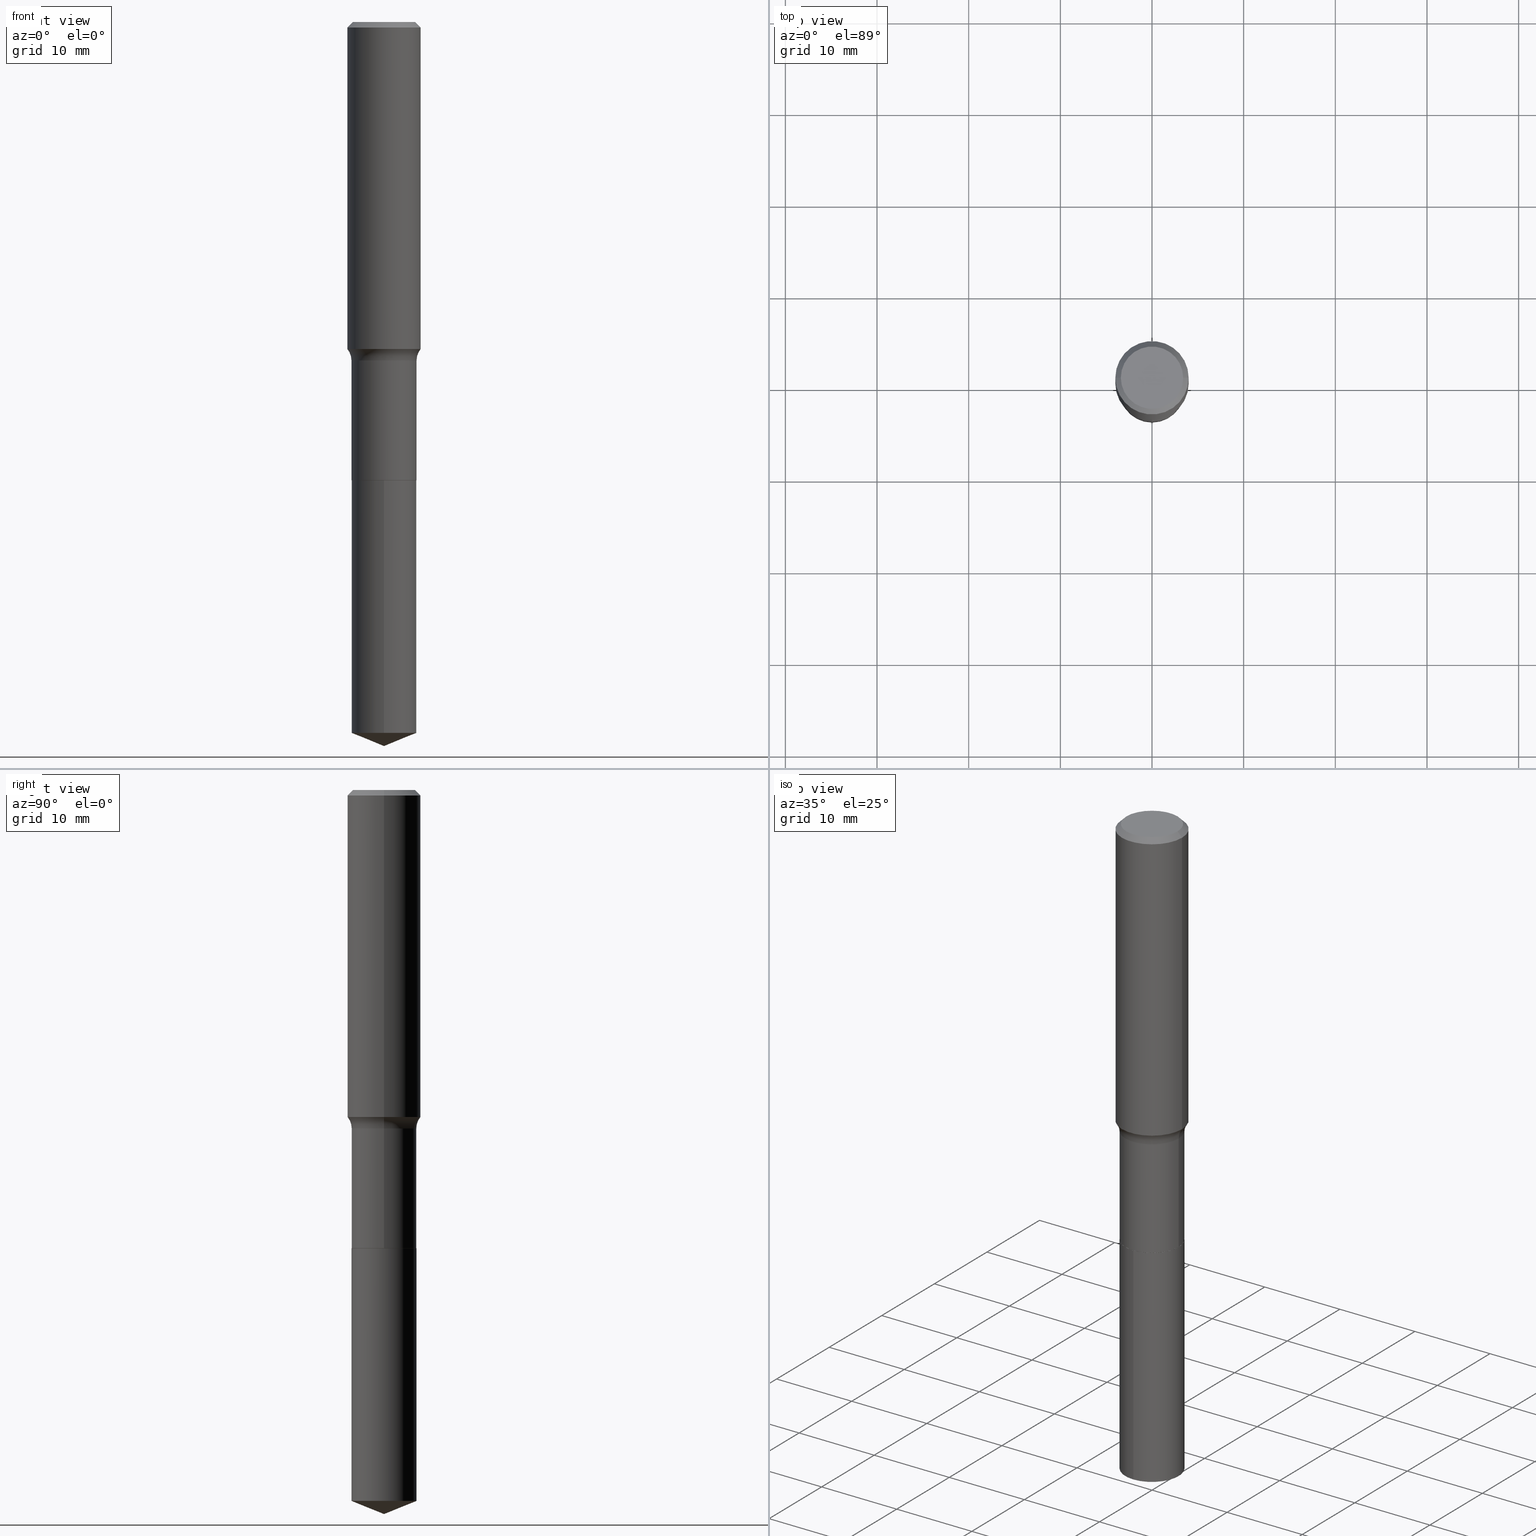
[diagram: canonical four-view strip — front | top / right | iso, engineering-drawing reading convention]
A machine part, canonical four-view strip (front | top / right | iso — engineering-drawing reading convention). The complete STEP part file that produces these views, byte-faithful:
ISO-10303-21;
HEADER;
FILE_DESCRIPTION (( 'STEP AP203' ),
    '1' );
FILE_NAME ('69161.STEP',
    '2024-04-19T17:18:12',
    ( '' ),
    ( '' ),
    'SwSTEP 2.0',
    'SolidWorks 2023',
    '' );
FILE_SCHEMA (( 'CONFIG_CONTROL_DESIGN' ));
ENDSEC;

DATA;
#1 = CC_DESIGN_PERSON_AND_ORGANIZATION_ASSIGNMENT ( #248, #252, ( #238 ) ) ;
#2 = CONICAL_SURFACE ( 'NONE', #143, 97.44436430772759650, 1.186823891356141969 ) ;
#3 = DIRECTION ( 'NONE',  ( -2.445468806185136597E-29, 3.491481338843145583E-15, 1.000000000000000000 ) ) ;
#4 = EDGE_CURVE ( 'NONE', #332, #388, #212, .T. ) ;
#5 = CARTESIAN_POINT ( 'NONE',  ( 0.1397499999999999576, -9.758690342066554020E-16, 6.814457044174817776E-30 ) ) ;
#6 = EDGE_LOOP ( 'NONE', ( #142, #45, #279, #154 ) ) ;
#7 = CARTESIAN_POINT ( 'NONE',  ( 0.000000000000000000, 0.000000000000000000, 0.000000000000000000 ) ) ;
#8 = DIRECTION ( 'NONE',  ( -2.445468806185136597E-29, 3.491481338843145583E-15, 1.000000000000000000 ) ) ;
#9 = TOROIDAL_SURFACE ( 'NONE', #372, 0.2177499999999998881, 0.07799999999999999989 ) ;
#10 = PERSON_AND_ORGANIZATION ( #145, #18 ) ;
#11 = DIRECTION ( 'NONE',  ( -6.982962677686265133E-15, -1.000000000000000000, 3.909621457837943227E-15 ) ) ;
#12 = CARTESIAN_POINT ( 'NONE',  ( 4.813905344975441835E-29, -6.872981015512731707E-15, -1.968500000000000139 ) ) ;
#13 = PERSON_AND_ORGANIZATION_ROLE ( 'creator' ) ;
#14 = EDGE_LOOP ( 'NONE', ( #288, #355, #254, #174 ) ) ;
#15 = CARTESIAN_POINT ( 'NONE',  ( 0.1392500000000000127, -7.845358568380544694E-15, -1.968500000000000139 ) ) ;
#16 = AXIS2_PLACEMENT_3D ( 'NONE', #386, #336, #187 ) ;
#17 = AXIS2_PLACEMENT_3D ( 'NONE', #278, #273, #94 ) ;
#18 = ORGANIZATION ( 'UNSPECIFIED', 'UNSPECIFIED', '' ) ;
#19 = DIRECTION ( 'NONE',  ( 0.7071067811866078578, -2.468850131082888544E-15, 0.7071067811864871766 ) ) ;
#20 = ORIENTED_EDGE ( 'NONE', *, *, #78, .T. ) ;
#21 = CARTESIAN_POINT ( 'NONE',  ( 3.555956191073807244E-29, -5.076963014811818627E-15, -1.454100000000000170 ) ) ;
#22 = ADVANCED_FACE ( 'NONE', ( #485 ), #2, .T. ) ;
#23 = CIRCLE ( 'NONE', #483, 0.1397500000000000131 ) ;
#24 = LOCAL_TIME ( 13, 18, 12.00000000000000000, #89 ) ;
#25 = CARTESIAN_POINT ( 'NONE',  ( 4.812682610572349594E-29, -6.871235274843310993E-15, -1.968000000000000194 ) ) ;
#26 = PERSON_AND_ORGANIZATION_ROLE ( 'creator' ) ;
#27 = FACE_OUTER_BOUND ( 'NONE', #84, .T. ) ;
#28 = CC_DESIGN_DATE_AND_TIME_ASSIGNMENT ( #362, #398, ( #238 ) ) ;
#29 = AXIS2_PLACEMENT_3D ( 'NONE', #168, #322, #470 ) ;
#30 = CYLINDRICAL_SURFACE ( 'NONE', #466, 0.1575000000000000844 ) ;
#31 =( NAMED_UNIT ( * ) PLANE_ANGLE_UNIT ( ) SI_UNIT ( $, .RADIAN. ) );
#32 = PERSON_AND_ORGANIZATION_ROLE ( 'design_owner' ) ;
#33 = ORIENTED_EDGE ( 'NONE', *, *, #173, .F. ) ;
#34 = ORIENTED_EDGE ( 'NONE', *, *, #295, .T. ) ;
#35 = FACE_OUTER_BOUND ( 'NONE', #191, .T. ) ;
#36 =( NAMED_UNIT ( * ) SI_UNIT ( $, .STERADIAN. ) SOLID_ANGLE_UNIT ( ) );
#37 = APPLICATION_PROTOCOL_DEFINITION ( 'international standard', 'config_control_design', 1994, #117 ) ;
#38 = VERTEX_POINT ( 'NONE', #310 ) ;
#39 = ORIENTED_EDGE ( 'NONE', *, *, #409, .F. ) ;
#40 = CARTESIAN_POINT ( 'NONE',  ( 0.000000000000000000, 0.000000000000000000, 0.000000000000000000 ) ) ;
#41 = ADVANCED_FACE ( 'NONE', ( #412 ), #107, .F. ) ;
#42 = CIRCLE ( 'NONE', #328, 0.1338749999999999940 ) ;
#43 = VECTOR ( 'NONE', #19, 39.37007874015748143 ) ;
#44 = DIRECTION ( 'NONE',  ( -2.445468806185136597E-29, 3.491481338843145583E-15, 1.000000000000000000 ) ) ;
#45 = ORIENTED_EDGE ( 'NONE', *, *, #147, .T. ) ;
#46 = DIRECTION ( 'NONE',  ( -2.445468806185136597E-29, 3.491481338843145583E-15, 1.000000000000000000 ) ) ;
#47 = DIRECTION ( 'NONE',  ( -6.982962677686265133E-15, -1.000000000000000000, 3.909621457837943227E-15 ) ) ;
#48 = FACE_OUTER_BOUND ( 'NONE', #68, .T. ) ;
#49 = CARTESIAN_POINT ( 'NONE',  ( -0.1397499999999999298, -4.981115671602824904E-15, -1.454100000000000170 ) ) ;
#50 = VERTEX_POINT ( 'NONE', #300 ) ;
#51 = CARTESIAN_POINT ( 'NONE',  ( 0.000000000000000000, 0.000000000000000000, 0.000000000000000000 ) ) ;
#52 = AXIS2_PLACEMENT_3D ( 'NONE', #306, #110, #153 ) ;
#53 = CARTESIAN_POINT ( 'NONE',  ( 0.1575000000000001954, -6.003821310304095983E-15, -1.404562766528599793 ) ) ;
#54 = ORIENTED_EDGE ( 'NONE', *, *, #76, .F. ) ;
#55 = CALENDAR_DATE ( 2024, 19, 4 ) ;
#56 = PERSON_AND_ORGANIZATION ( #145, #18 ) ;
#57 = ADVANCED_FACE ( 'NONE', ( #109 ), #30, .T. ) ;
#58 = ORIENTED_EDGE ( 'NONE', *, *, #484, .F. ) ;
#59 = CIRCLE ( 'NONE', #340, 0.1397500000000000131 ) ;
#60 = VECTOR ( 'NONE', #79, 39.37007874015748143 ) ;
#61 = CARTESIAN_POINT ( 'NONE',  ( -0.1575000000000001954, -3.784899879746348533E-15, -1.404562766528599793 ) ) ;
#62 = ORIENTED_EDGE ( 'NONE', *, *, #137, .T. ) ;
#63 = DIRECTION ( 'NONE',  ( 0.7071067811865451302, -7.319954787623248157E-15, -0.7071067811865499042 ) ) ;
#64 = AXIS2_PLACEMENT_3D ( 'NONE', #215, #348, #224 ) ;
#65 = CARTESIAN_POINT ( 'NONE',  ( -9.758690342065812491E-16, -0.1397500000000106990, -3.053737334939536030 ) ) ;
#66 = EDGE_CURVE ( 'NONE', #346, #50, #155, .T. ) ;
#67 = DIRECTION ( 'NONE',  ( -2.445468806185136597E-29, 3.491481338843145583E-15, 1.000000000000000000 ) ) ;
#68 = EDGE_LOOP ( 'NONE', ( #75, #481, #444, #267 ) ) ;
#69 = CARTESIAN_POINT ( 'NONE',  ( 0.1575000000000000011, -1.163014681279185964E-15, -0.02362500000000014588 ) ) ;
#70 = CIRCLE ( 'NONE', #64, 0.1397500000000000131 ) ;
#71 = APPROVAL_PERSON_ORGANIZATION ( #294, #445, #476 ) ;
#72 = EDGE_CURVE ( 'NONE', #442, #449, #185, .T. ) ;
#73 = DIRECTION ( 'NONE',  ( 1.000000000000000000, -6.982962677686267499E-15, 4.876176775795936353E-29 ) ) ;
#74 = DIRECTION ( 'NONE',  ( -2.445468806185136597E-29, 3.491481338843145583E-15, 1.000000000000000000 ) ) ;
#75 = ORIENTED_EDGE ( 'NONE', *, *, #66, .F. ) ;
#76 = EDGE_CURVE ( 'NONE', #127, #178, #487, .T. ) ;
#77 = LINE ( 'NONE', #277, #124 ) ;
#78 = EDGE_CURVE ( 'NONE', #442, #307, #59, .T. ) ;
#79 = DIRECTION ( 'NONE',  ( -0.7071067811865451302, 2.468850131082231817E-15, -0.7071067811865499042 ) ) ;
#80 = ORIENTED_EDGE ( 'NONE', *, *, #173, .T. ) ;
#81 = LOCAL_TIME ( 13, 18, 12.00000000000000000, #128 ) ;
#82 = DIRECTION ( 'NONE',  ( 1.000000000000000000, -6.982962677686265133E-15, 0.000000000000000000 ) ) ;
#83 = ORIENTED_EDGE ( 'NONE', *, *, #393, .T. ) ;
#84 = EDGE_LOOP ( 'NONE', ( #184, #232, #33 ) ) ;
#85 = FACE_OUTER_BOUND ( 'NONE', #304, .T. ) ;
#86 = EDGE_CURVE ( 'NONE', #449, #38, #290, .T. ) ;
#87 = CARTESIAN_POINT ( 'NONE',  ( 7.605971089883326540E-29, -1.085910352313462661E-14, -3.110199999999999854 ) ) ;
#88 = ORIENTED_EDGE ( 'NONE', *, *, #196, .T. ) ;
#89 = COORDINATED_UNIVERSAL_TIME_OFFSET ( 5, 0, .BEHIND. ) ;
#90 = DIRECTION ( 'NONE',  ( 1.000000000000000000, -6.982962677686266711E-15, 4.876170806578254279E-29 ) ) ;
#91 = CARTESIAN_POINT ( 'NONE',  ( 9.929834732247880261E-16, 0.1397499999999931297, -1.968500000000000583 ) ) ;
#92 = APPROVAL_DATE_TIME ( #401, #445 ) ;
#93 = AXIS2_PLACEMENT_3D ( 'NONE', #432, #358, #389 ) ;
#94 = DIRECTION ( 'NONE',  ( -6.982962677686265133E-15, -1.000000000000000000, 3.909621457837943227E-15 ) ) ;
#95 = ADVANCED_FACE ( 'NONE', ( #259 ), #301, .T. ) ;
#96 = APPLICATION_PROTOCOL_DEFINITION ( 'international standard', 'config_control_design', 1994, #345 ) ;
#97 = LINE ( 'NONE', #15, #43 ) ;
#98 = EDGE_LOOP ( 'NONE', ( #226, #83, #424, #58 ) ) ;
#99 = CARTESIAN_POINT ( 'NONE',  ( 0.1338749999999999940, -1.040731925365424925E-15, 4.101342130351390035E-18 ) ) ;
#100 = APPROVAL_STATUS ( 'not_yet_approved' ) ;
#101 = CARTESIAN_POINT ( 'NONE',  ( 0.1392500000000000127, -7.845358568380544694E-15, -1.968500000000000139 ) ) ;
#102 = DIRECTION ( 'NONE',  ( -2.438088387897960049E-29, 3.491481338843145188E-15, 1.000000000000000000 ) ) ;
#103 = CARTESIAN_POINT ( 'NONE',  ( 3.555956191073807244E-29, -5.076963014811818627E-15, -1.454100000000000170 ) ) ;
#104 = VECTOR ( 'NONE', #227, 39.37007874015748143 ) ;
#105 = AXIS2_PLACEMENT_3D ( 'NONE', #423, #74, #156 ) ;
#106 = CC_DESIGN_APPROVAL ( #381, ( #222 ) ) ;
#107 = PLANE ( 'NONE',  #204 ) ;
#108 = EDGE_CURVE ( 'NONE', #352, #375, #402, .T. ) ;
#109 = FACE_OUTER_BOUND ( 'NONE', #14, .T. ) ;
#110 = DIRECTION ( 'NONE',  ( 2.438088387897960049E-29, -3.491481338843145188E-15, -1.000000000000000000 ) ) ;
#111 = VERTEX_POINT ( 'NONE', #459 ) ;
#112 = DIRECTION ( 'NONE',  ( 1.000000000000000000, -6.982962677686266711E-15, 4.876170806578254279E-29 ) ) ;
#113 = DIRECTION ( 'NONE',  ( 2.445468806185136597E-29, -3.491481338843145583E-15, -1.000000000000000000 ) ) ;
#114 = AXIS2_PLACEMENT_3D ( 'NONE', #152, #414, #456 ) ;
#115 = VECTOR ( 'NONE', #240, 39.37007874015748143 ) ;
#116 = FACE_OUTER_BOUND ( 'NONE', #458, .T. ) ;
#117 = APPLICATION_CONTEXT ( 'configuration controlled 3d designs of mechanical parts and assemblies' ) ;
#118 = CARTESIAN_POINT ( 'NONE',  ( 4.812682610572349594E-29, -6.871235274843310993E-15, -1.968000000000000194 ) ) ;
#119 = EDGE_LOOP ( 'NONE', ( #139, #247, #183, #208 ) ) ;
#120 = CARTESIAN_POINT ( 'NONE',  ( 7.605629838069280594E-29, -1.085958796715298580E-14, -3.110199999999999854 ) ) ;
#121 = DIRECTION ( 'NONE',  ( 1.000000000000000000, -6.982962677686267499E-15, 4.883557194083113462E-29 ) ) ;
#122 = ORIENTED_EDGE ( 'NONE', *, *, #137, .F. ) ;
#123 = DIRECTION ( 'NONE',  ( -6.474490251793170740E-15, -0.9271838545667852038, 0.3746065934159171773 ) ) ;
#124 = VECTOR ( 'NONE', #129, 39.37007874015748143 ) ;
#125 = LOCAL_TIME ( 13, 18, 12.00000000000000000, #175 ) ;
#126 = DIRECTION ( 'NONE',  ( -2.445468806185136877E-29, 3.491481338843145188E-15, 1.000000000000000000 ) ) ;
#127 = VERTEX_POINT ( 'NONE', #65 ) ;
#128 = COORDINATED_UNIVERSAL_TIME_OFFSET ( 5, 0, .BEHIND. ) ;
#129 = DIRECTION ( 'NONE',  ( -0.7071067811866078578, 7.493145998870571886E-15, 0.7071067811864871766 ) ) ;
#130 = CARTESIAN_POINT ( 'NONE',  ( 9.929834732248148474E-16, 0.1397499999999893827, -3.053737334939536918 ) ) ;
#131 = ORIENTED_EDGE ( 'NONE', *, *, #446, .T. ) ;
#132 = PERSON_AND_ORGANIZATION ( #145, #18 ) ;
#133 = DIRECTION ( 'NONE',  ( 1.000000000000000000, -6.982962677686265922E-15, 0.000000000000000000 ) ) ;
#134 = ORIENTED_EDGE ( 'NONE', *, *, #379, .F. ) ;
#135 = SHAPE_DEFINITION_REPRESENTATION ( #415, #284 ) ;
#136 = AXIS2_PLACEMENT_3D ( 'NONE', #417, #67, #308 ) ;
#137 = EDGE_CURVE ( 'NONE', #346, #293, #42, .T. ) ;
#138 = AXIS2_PLACEMENT_3D ( 'NONE', #233, #314, #11 ) ;
#139 = ORIENTED_EDGE ( 'NONE', *, *, #108, .T. ) ;
#140 = DIRECTION ( 'NONE',  ( -2.445382881508996682E-29, 3.491604387869906913E-15, 1.000000000000000000 ) ) ;
#141 = EDGE_LOOP ( 'NONE', ( #447, #325 ) ) ;
#142 = ORIENTED_EDGE ( 'NONE', *, *, #330, .T. ) ;
#143 = AXIS2_PLACEMENT_3D ( 'NONE', #262, #350, #457 ) ;
#144 = VECTOR ( 'NONE', #123, 39.37007874015748854 ) ;
#145 = PERSON ( 'UNSPECIFIED', 'UNSPECIFIED', 'UNSPECIFIED', ('UNSPECIFIED'), ('UNSPECIFIED'), ('UNSPECIFIED') ) ;
#146 = EDGE_CURVE ( 'NONE', #388, #50, #305, .T. ) ;
#147 = EDGE_CURVE ( 'NONE', #332, #111, #380, .T. ) ;
#148 = DIRECTION ( 'NONE',  ( -2.445468806185136877E-29, 3.491481338843145188E-15, 1.000000000000000000 ) ) ;
#149 = FACE_OUTER_BOUND ( 'NONE', #323, .T. ) ;
#150 = CONICAL_SURFACE ( 'NONE', #311, 0.1392500000000000127, 0.7853981633975336552 ) ;
#151 = DIRECTION ( 'NONE',  ( -2.445468806185136597E-29, 3.491481338843145583E-15, 1.000000000000000000 ) ) ;
#152 = CARTESIAN_POINT ( 'NONE',  ( 4.813905344975441835E-29, -6.872981015512731707E-15, -1.968500000000000139 ) ) ;
#153 = DIRECTION ( 'NONE',  ( -1.000000000000000000, 6.982962677686265922E-15, -4.876176775795935793E-29 ) ) ;
#154 = ORIENTED_EDGE ( 'NONE', *, *, #146, .F. ) ;
#155 = LINE ( 'NONE', #69, #454 ) ;
#156 = DIRECTION ( 'NONE',  ( 1.000000000000000000, -6.982962677686267499E-15, 0.000000000000000000 ) ) ;
#157 = CIRCLE ( 'NONE', #461, 0.07799999999999999989 ) ;
#158 = ORIENTED_EDGE ( 'NONE', *, *, #198, .T. ) ;
#159 = FACE_OUTER_BOUND ( 'NONE', #6, .T. ) ;
#160 = EDGE_CURVE ( 'NONE', #38, #449, #176, .T. ) ;
#161 = CARTESIAN_POINT ( 'NONE',  ( 4.813905344975441835E-29, -6.872981015512731707E-15, -1.968500000000000139 ) ) ;
#162 = DIRECTION ( 'NONE',  ( 1.000000000000000000, -6.982962677686265922E-15, 4.876176775795935232E-29 ) ) ;
#163 = DIRECTION ( 'NONE',  ( -2.445468806185136597E-29, 3.491481338843145583E-15, 1.000000000000000000 ) ) ;
#164 = ORIENTED_EDGE ( 'NONE', *, *, #76, .T. ) ;
#165 = DIRECTION ( 'NONE',  ( 1.000000000000000000, -6.982962677686267499E-15, 0.000000000000000000 ) ) ;
#166 = CC_DESIGN_PERSON_AND_ORGANIZATION_ASSIGNMENT ( #132, #13, ( #413 ) ) ;
#167 = AXIS2_PLACEMENT_3D ( 'NONE', #103, #420, #490 ) ;
#168 = CARTESIAN_POINT ( 'NONE',  ( 0.2177499999999998881, -6.597503137878001878E-15, -1.454100000000000170 ) ) ;
#169 = PERSON_AND_ORGANIZATION ( #145, #18 ) ;
#170 = ADVANCED_FACE ( 'NONE', ( #27 ), #205, .T. ) ;
#171 = FACE_OUTER_BOUND ( 'NONE', #119, .T. ) ;
#172 = DATE_AND_TIME ( #55, #125 ) ;
#173 = EDGE_CURVE ( 'NONE', #437, #127, #70, .T. ) ;
#174 = ORIENTED_EDGE ( 'NONE', *, *, #465, .F. ) ;
#175 = COORDINATED_UNIVERSAL_TIME_OFFSET ( 5, 0, .BEHIND. ) ;
#176 = CIRCLE ( 'NONE', #235, 0.1397499999999999298 ) ;
#177 = CIRCLE ( 'NONE', #403, 0.1397500000000000131 ) ;
#178 = VERTEX_POINT ( 'NONE', #338 ) ;
#179 = MECHANICAL_CONTEXT ( 'NONE', #345, 'mechanical' ) ;
#180 = ORIENTED_EDGE ( 'NONE', *, *, #330, .F. ) ;
#181 = DIRECTION ( 'NONE',  ( -2.445468806185136597E-29, 3.491481338843145583E-15, 1.000000000000000000 ) ) ;
#182 = ADVANCED_FACE ( 'NONE', ( #149 ), #303, .F. ) ;
#183 = ORIENTED_EDGE ( 'NONE', *, *, #405, .F. ) ;
#184 = ORIENTED_EDGE ( 'NONE', *, *, #416, .F. ) ;
#185 = LINE ( 'NONE', #337, #217 ) ;
#186 = ORIENTED_EDGE ( 'NONE', *, *, #160, .T. ) ;
#187 = DIRECTION ( 'NONE',  ( 1.000000000000000000, -6.982962677686267499E-15, 0.000000000000000000 ) ) ;
#188 = ORIENTED_EDGE ( 'NONE', *, *, #379, .T. ) ;
#189 = CARTESIAN_POINT ( 'NONE',  ( 5.777420054612421104E-31, -8.248624663016984002E-17, -0.02362500000000014588 ) ) ;
#190 = DIRECTION ( 'NONE',  ( 1.000000000000000000, -6.982962677686267499E-15, 0.000000000000000000 ) ) ;
#191 = EDGE_LOOP ( 'NONE', ( #475, #180, #242, #186 ) ) ;
#192 = FACE_OUTER_BOUND ( 'NONE', #407, .T. ) ;
#193 = EDGE_LOOP ( 'NONE', ( #429, #80, #164, #471 ) ) ;
#194 = AXIS2_PLACEMENT_3D ( 'NONE', #51, #396, #317 ) ;
#195 =( GEOMETRIC_REPRESENTATION_CONTEXT ( 3 ) GLOBAL_UNCERTAINTY_ASSIGNED_CONTEXT ( ( #318 ) ) GLOBAL_UNIT_ASSIGNED_CONTEXT ( ( #421, #31, #36 ) ) REPRESENTATION_CONTEXT ( 'NONE', 'WORKASPACE' ) );
#196 = EDGE_CURVE ( 'NONE', #127, #437, #455, .T. ) ;
#197 = DIRECTION ( 'NONE',  ( -2.445468806185136597E-29, 3.491481338843145583E-15, 1.000000000000000000 ) ) ;
#198 = EDGE_CURVE ( 'NONE', #375, #352, #356, .T. ) ;
#199 = CARTESIAN_POINT ( 'NONE',  ( 5.777420054612421104E-31, -8.248624663016984002E-17, -0.02362500000000014588 ) ) ;
#200 = ORIENTED_EDGE ( 'NONE', *, *, #160, .F. ) ;
#201 = DIRECTION ( 'NONE',  ( -2.445468806185136597E-29, 3.491481338843145583E-15, 1.000000000000000000 ) ) ;
#202 = APPROVAL_DATE_TIME ( #209, #371 ) ;
#203 = FACE_OUTER_BOUND ( 'NONE', #418, .T. ) ;
#204 = AXIS2_PLACEMENT_3D ( 'NONE', #347, #102, #491 ) ;
#205 = CONICAL_SURFACE ( 'NONE', #268, 97.44436430772759650, 1.186823891356141969 ) ;
#206 = AXIS2_PLACEMENT_3D ( 'NONE', #199, #404, #133 ) ;
#207 = FACE_OUTER_BOUND ( 'NONE', #395, .T. ) ;
#208 = ORIENTED_EDGE ( 'NONE', *, *, #353, .F. ) ;
#209 = DATE_AND_TIME ( #472, #450 ) ;
#210 = EDGE_CURVE ( 'NONE', #375, #442, #77, .T. ) ;
#211 = CARTESIAN_POINT ( 'NONE',  ( 0.000000000000000000, 0.000000000000000000, 0.000000000000000000 ) ) ;
#212 = CIRCLE ( 'NONE', #16, 0.1575000000000001676 ) ;
#213 = AXIS2_PLACEMENT_3D ( 'NONE', #312, #435, #90 ) ;
#214 = DATE_TIME_ROLE ( 'creation_date' ) ;
#215 = CARTESIAN_POINT ( 'NONE',  ( 7.467726146211027916E-29, -1.066220045606786158E-14, -3.053737334939536474 ) ) ;
#216 = ADVANCED_FACE ( 'NONE', ( #116 ), #329, .T. ) ;
#217 = VECTOR ( 'NONE', #148, 39.37007874015748143 ) ;
#218 = CONICAL_SURFACE ( 'NONE', #468, 0.1392500000000000127, 0.7853981633975336552 ) ;
#219 = CARTESIAN_POINT ( 'NONE',  ( -9.758690342066074787E-16, -0.1397500000000068965, -1.968499999999999472 ) ) ;
#220 = ADVANCED_FACE ( 'NONE', ( #85 ), #321, .T. ) ;
#221 = ORIENTED_EDGE ( 'NONE', *, *, #440, .F. ) ;
#222 = PRODUCT_DEFINITION ( 'UNKNOWN', '', #413, #478 ) ;
#223 = DIRECTION ( 'NONE',  ( -2.445468806185136597E-29, 3.491481338843145583E-15, 1.000000000000000000 ) ) ;
#224 = DIRECTION ( 'NONE',  ( -6.982962677686265133E-15, -1.000000000000000000, 3.909621457837943227E-15 ) ) ;
#225 = MANIFOLD_SOLID_BREP ( 'Body-Move/Copy2[2]', #422 ) ;
#226 = ORIENTED_EDGE ( 'NONE', *, *, #4, .F. ) ;
#227 = DIRECTION ( 'NONE',  ( -2.445468806185136877E-29, 3.491481338843145188E-15, 1.000000000000000000 ) ) ;
#228 = DIRECTION ( 'NONE',  ( -2.445468806185136877E-29, 3.491481338843145188E-15, 1.000000000000000000 ) ) ;
#229 = AXIS2_PLACEMENT_3D ( 'NONE', #189, #113, #283 ) ;
#230 = MANIFOLD_SOLID_BREP ( 'Body-Move/Copy2[1]', #257 ) ;
#231 = CARTESIAN_POINT ( 'NONE',  ( -1.002970424325032604E-46, 1.431975951230895391E-32, 4.101342130344482109E-18 ) ) ;
#232 = ORIENTED_EDGE ( 'NONE', *, *, #255, .T. ) ;
#233 = CARTESIAN_POINT ( 'NONE',  ( 7.467726146211027916E-29, -1.066220045606786158E-14, -3.053737334939536474 ) ) ;
#234 = ADVANCED_FACE ( 'NONE', ( #192 ), #360, .T. ) ;
#235 = AXIS2_PLACEMENT_3D ( 'NONE', #489, #151, #383 ) ;
#236 = ADVANCED_FACE ( 'NONE', ( #159 ), #427, .T. ) ;
#237 = CIRCLE ( 'NONE', #206, 0.1575000000000000011 ) ;
#238 = SECURITY_CLASSIFICATION ( '', '', #245 ) ;
#239 = ADVANCED_FACE ( 'NONE', ( #35 ), #448, .F. ) ;
#240 = DIRECTION ( 'NONE',  ( -2.445382881508996682E-29, 3.491604387869906519E-15, 1.000000000000000000 ) ) ;
#241 = ORIENTED_EDGE ( 'NONE', *, *, #78, .F. ) ;
#242 = ORIENTED_EDGE ( 'NONE', *, *, #484, .T. ) ;
#243 = DIRECTION ( 'NONE',  ( 1.000000000000000000, -6.982962677686265922E-15, 4.876176775795935232E-29 ) ) ;
#244 = CARTESIAN_POINT ( 'NONE',  ( 7.605629838069280594E-29, -1.085958796715298580E-14, -3.110199999999999854 ) ) ;
#245 = SECURITY_CLASSIFICATION_LEVEL ( 'unclassified' ) ;
#246 = DIRECTION ( 'NONE',  ( 1.000000000000000000, -6.982962677686265922E-15, 0.000000000000000000 ) ) ;
#247 = ORIENTED_EDGE ( 'NONE', *, *, #210, .T. ) ;
#248 = PERSON_AND_ORGANIZATION ( #145, #18 ) ;
#249 = APPROVAL_DATE_TIME ( #439, #381 ) ;
#250 = CIRCLE ( 'NONE', #17, 0.1397500000000000131 ) ;
#251 = EDGE_LOOP ( 'NONE', ( #342, #385, #430 ) ) ;
#252 = PERSON_AND_ORGANIZATION_ROLE ( 'classification_officer' ) ;
#253 = AXIS2_PLACEMENT_3D ( 'NONE', #464, #271, #387 ) ;
#254 = ORIENTED_EDGE ( 'NONE', *, *, #146, .T. ) ;
#255 = EDGE_CURVE ( 'NONE', #419, #127, #425, .T. ) ;
#256 = DIRECTION ( 'NONE',  ( -2.445468806185136597E-29, 3.491481338843145583E-15, 1.000000000000000000 ) ) ;
#257 = CLOSED_SHELL ( 'NONE', ( #486, #22, #170, #95, #313 ) ) ;
#258 = CONICAL_SURFACE ( 'NONE', #229, 0.1575000000000000011, 0.7853981633974449483 ) ;
#259 = FACE_OUTER_BOUND ( 'NONE', #193, .T. ) ;
#260 = PRODUCT ( '69161', '69161', '', ( #179 ) ) ;
#261 = APPROVAL_ROLE ( '' ) ;
#262 = CARTESIAN_POINT ( 'NONE',  ( -8.866911761404812380E-28, 1.266053939347737860E-13, 36.25987874015748247 ) ) ;
#263 =( LENGTH_UNIT ( ) NAMED_UNIT ( * ) SI_UNIT ( $, .METRE. ) );
#264 = PRODUCT_RELATED_PRODUCT_CATEGORY ( 'detail', '', ( #260 ) ) ;
#265 = CARTESIAN_POINT ( 'NONE',  ( 0.000000000000000000, 0.000000000000000000, 0.000000000000000000 ) ) ;
#266 = VECTOR ( 'NONE', #377, 39.37007874015748143 ) ;
#267 = ORIENTED_EDGE ( 'NONE', *, *, #465, .T. ) ;
#268 = AXIS2_PLACEMENT_3D ( 'NONE', #327, #140, #292 ) ;
#269 = DIRECTION ( 'NONE',  ( 2.445382881508996682E-29, -3.491604387869906519E-15, -1.000000000000000000 ) ) ;
#270 = ORIENTED_EDGE ( 'NONE', *, *, #405, .T. ) ;
#271 = DIRECTION ( 'NONE',  ( -2.445468806185136597E-29, 3.491481338843145583E-15, 1.000000000000000000 ) ) ;
#272 = PERSON_AND_ORGANIZATION ( #145, #18 ) ;
#273 = DIRECTION ( 'NONE',  ( -2.445382881508996682E-29, 3.491604387869906913E-15, 1.000000000000000000 ) ) ;
#274 = ORIENTED_EDGE ( 'NONE', *, *, #353, .T. ) ;
#275 = ADVANCED_FACE ( 'NONE', ( #48 ), #258, .T. ) ;
#276 = DIMENSIONAL_EXPONENTS ( 1.000000000000000000, 0.000000000000000000, 0.000000000000000000, 0.000000000000000000, 0.000000000000000000, 0.000000000000000000, 0.000000000000000000 ) ;
#277 = CARTESIAN_POINT ( 'NONE',  ( -0.1392500000000000127, -5.883550255966792306E-15, -1.968500000000000139 ) ) ;
#278 = CARTESIAN_POINT ( 'NONE',  ( 4.813905344975441835E-29, -6.872981015512731707E-15, -1.968500000000000139 ) ) ;
#279 = ORIENTED_EDGE ( 'NONE', *, *, #406, .F. ) ;
#280 = CARTESIAN_POINT ( 'NONE',  ( 4.813905344975441835E-29, -6.872981015512731707E-15, -1.968500000000000139 ) ) ;
#281 = VECTOR ( 'NONE', #441, 39.37007874015748854 ) ;
#282 = AXIS2_PLACEMENT_3D ( 'NONE', #211, #411, #335 ) ;
#283 = DIRECTION ( 'NONE',  ( -1.000000000000000000, 6.982962677686265922E-15, 0.000000000000000000 ) ) ;
#284 = ADVANCED_BREP_SHAPE_REPRESENTATION ( '69161', ( #230, #225, #282 ), #195 ) ;
#285 = LINE ( 'NONE', #87, #281 ) ;
#286 = ORIENTED_EDGE ( 'NONE', *, *, #409, .T. ) ;
#287 = CALENDAR_DATE ( 2024, 19, 4 ) ;
#288 = ORIENTED_EDGE ( 'NONE', *, *, #147, .F. ) ;
#289 = CALENDAR_DATE ( 2024, 19, 4 ) ;
#290 = CIRCLE ( 'NONE', #167, 0.1397499999999999298 ) ;
#291 = ORIENTED_EDGE ( 'NONE', *, *, #72, .F. ) ;
#292 = DIRECTION ( 'NONE',  ( -6.982962677686266711E-15, -1.000000000000000000, 3.498761904101857140E-15 ) ) ;
#293 = VERTEX_POINT ( 'NONE', #399 ) ;
#294 = PERSON_AND_ORGANIZATION ( #145, #18 ) ;
#295 = EDGE_CURVE ( 'NONE', #293, #346, #408, .T. ) ;
#296 = CC_DESIGN_DATE_AND_TIME_ASSIGNMENT ( #172, #214, ( #222 ) ) ;
#297 = ORIENTED_EDGE ( 'NONE', *, *, #451, .T. ) ;
#298 = AXIS2_PLACEMENT_3D ( 'NONE', #280, #46, #165 ) ;
#299 = LOCAL_TIME ( 13, 18, 12.00000000000000000, #473 ) ;
#300 = CARTESIAN_POINT ( 'NONE',  ( 0.1575000000000000011, -1.182302868365756679E-15, -0.02362500000000014588 ) ) ;
#301 = CYLINDRICAL_SURFACE ( 'NONE', #114, 0.1397500000000000131 ) ;
#302 = APPROVAL_PERSON_ORGANIZATION ( #272, #381, #261 ) ;
#303 = PLANE ( 'NONE',  #52 ) ;
#304 = EDGE_LOOP ( 'NONE', ( #270, #410, #200, #134 ) ) ;
#305 = LINE ( 'NONE', #378, #104 ) ;
#306 = CARTESIAN_POINT ( 'NONE',  ( -5.014852121625163022E-47, 7.159879756154476955E-33, 2.050671065172241055E-18 ) ) ;
#307 = VERTEX_POINT ( 'NONE', #460 ) ;
#308 = DIRECTION ( 'NONE',  ( 1.000000000000000000, -6.982962677686267499E-15, 0.000000000000000000 ) ) ;
#309 = CARTESIAN_POINT ( 'NONE',  ( 4.813905344975441835E-29, -6.872981015512731707E-15, -1.968500000000000139 ) ) ;
#310 = CARTESIAN_POINT ( 'NONE',  ( 0.1397499999999999298, -6.052832049018473832E-15, -1.454100000000000170 ) ) ;
#311 = AXIS2_PLACEMENT_3D ( 'NONE', #359, #8, #190 ) ;
#312 = CARTESIAN_POINT ( 'NONE',  ( -1.002970424325032604E-46, 1.431975951230895391E-32, 4.101342130344482109E-18 ) ) ;
#313 = ADVANCED_FACE ( 'NONE', ( #203 ), #363, .F. ) ;
#314 = DIRECTION ( 'NONE',  ( -2.445382881508996682E-29, 3.491604387869906913E-15, 1.000000000000000000 ) ) ;
#315 = CC_DESIGN_PERSON_AND_ORGANIZATION_ASSIGNMENT ( #56, #32, ( #260 ) ) ;
#316 = VERTEX_POINT ( 'NONE', #492 ) ;
#317 = DIRECTION ( 'NONE',  ( 1.000000000000000000, -6.982962677686267499E-15, 4.876176775795936353E-29 ) ) ;
#318 = UNCERTAINTY_MEASURE_WITH_UNIT (LENGTH_MEASURE( 1.000000000000000082E-05 ), #421, 'distance_accuracy_value', 'NONE');
#319 = CARTESIAN_POINT ( 'NONE',  ( 5.777420054612421104E-31, -8.248624663016984002E-17, -0.02362500000000014588 ) ) ;
#320 = APPROVAL_STATUS ( 'not_yet_approved' ) ;
#321 = CYLINDRICAL_SURFACE ( 'NONE', #364, 0.1397499999999999576 ) ;
#322 = DIRECTION ( 'NONE',  ( -6.982962677686266711E-15, -1.000000000000000000, 3.491481338843145583E-15 ) ) ;
#323 = EDGE_LOOP ( 'NONE', ( #34, #62 ) ) ;
#324 = LINE ( 'NONE', #397, #60 ) ;
#325 = ORIENTED_EDGE ( 'NONE', *, *, #198, .F. ) ;
#326 = CALENDAR_DATE ( 2024, 19, 4 ) ;
#327 = CARTESIAN_POINT ( 'NONE',  ( -8.866911761404812380E-28, 1.266053939347737860E-13, 36.25987874015748247 ) ) ;
#328 = AXIS2_PLACEMENT_3D ( 'NONE', #231, #223, #112 ) ;
#329 = CONICAL_SURFACE ( 'NONE', #93, 0.1575000000000000011, 0.7853981633974449483 ) ;
#330 = EDGE_CURVE ( 'NONE', #388, #332, #488, .T. ) ;
#331 = ORIENTED_EDGE ( 'NONE', *, *, #210, .F. ) ;
#332 = VERTEX_POINT ( 'NONE', #61 ) ;
#333 = AXIS2_PLACEMENT_3D ( 'NONE', #7, #3, #162 ) ;
#334 = ORIENTED_EDGE ( 'NONE', *, *, #86, .F. ) ;
#335 = DIRECTION ( 'NONE',  ( 1.000000000000000000, 0.000000000000000000, 0.000000000000000000 ) ) ;
#336 = DIRECTION ( 'NONE',  ( -2.445468806185136597E-29, 3.491481338843145583E-15, 1.000000000000000000 ) ) ;
#337 = CARTESIAN_POINT ( 'NONE',  ( -0.1397499999999999576, 9.929834732247397084E-16, -6.874211788631229584E-30 ) ) ;
#338 = CARTESIAN_POINT ( 'NONE',  ( -9.758690342066074787E-16, -0.1397500000000068965, -1.968499999999999472 ) ) ;
#339 = DIRECTION ( 'NONE',  ( -2.445382881508996682E-29, 3.491604387869906913E-15, 1.000000000000000000 ) ) ;
#340 = AXIS2_PLACEMENT_3D ( 'NONE', #25, #181, #452 ) ;
#341 = CIRCLE ( 'NONE', #29, 0.07799999999999999989 ) ;
#342 = ORIENTED_EDGE ( 'NONE', *, *, #255, .F. ) ;
#343 = CARTESIAN_POINT ( 'NONE',  ( -0.1575000000000000844, 1.119104808822158392E-15, -7.747322767151481189E-30 ) ) ;
#344 = LENGTH_MEASURE_WITH_UNIT ( LENGTH_MEASURE( 0.02539999999999999897 ), #263 );
#345 = APPLICATION_CONTEXT ( 'configuration controlled 3d designs of mechanical parts and assemblies' ) ;
#346 = VERTEX_POINT ( 'NONE', #99 ) ;
#347 = CARTESIAN_POINT ( 'NONE',  ( 4.813905344975441835E-29, -6.872981015512731707E-15, -1.968500000000000139 ) ) ;
#348 = DIRECTION ( 'NONE',  ( -2.445382881508996682E-29, 3.491604387869906913E-15, 1.000000000000000000 ) ) ;
#349 = DIRECTION ( 'NONE',  ( -6.982962677686265133E-15, -1.000000000000000000, 3.909621457837943227E-15 ) ) ;
#350 = DIRECTION ( 'NONE',  ( -2.445382881508996682E-29, 3.491604387869906913E-15, 1.000000000000000000 ) ) ;
#351 = DIRECTION ( 'NONE',  ( 6.982962677686265922E-15, 1.000000000000000000, -3.491604387869906519E-15 ) ) ;
#352 = VERTEX_POINT ( 'NONE', #101 ) ;
#353 = EDGE_CURVE ( 'NONE', #352, #307, #97, .T. ) ;
#354 = DIRECTION ( 'NONE',  ( 7.105427357601001859E-15, 1.000000000000000000, -3.491481338843145583E-15 ) ) ;
#355 = ORIENTED_EDGE ( 'NONE', *, *, #4, .T. ) ;
#356 = CIRCLE ( 'NONE', #298, 0.1392500000000000127 ) ;
#357 = EDGE_LOOP ( 'NONE', ( #331, #158, #274, #241 ) ) ;
#358 = DIRECTION ( 'NONE',  ( 2.445468806185136597E-29, -3.491481338843145583E-15, -1.000000000000000000 ) ) ;
#359 = CARTESIAN_POINT ( 'NONE',  ( 4.813905344975441835E-29, -6.872981015512731707E-15, -1.968500000000000139 ) ) ;
#360 = CYLINDRICAL_SURFACE ( 'NONE', #333, 0.1397499999999999576 ) ;
#361 = DIRECTION ( 'NONE',  ( 1.000000000000000000, -6.982962677686267499E-15, 0.000000000000000000 ) ) ;
#362 = DATE_AND_TIME ( #326, #81 ) ;
#363 = PLANE ( 'NONE',  #376 ) ;
#364 = AXIS2_PLACEMENT_3D ( 'NONE', #40, #197, #243 ) ;
#365 = CC_DESIGN_APPROVAL ( #445, ( #238 ) ) ;
#366 = CYLINDRICAL_SURFACE ( 'NONE', #382, 0.1397500000000000131 ) ;
#367 = PERSON_AND_ORGANIZATION_ROLE ( 'design_supplier' ) ;
#368 = PERSON_AND_ORGANIZATION ( #145, #18 ) ;
#369 = ADVANCED_FACE ( 'NONE', ( #480 ), #9, .F. ) ;
#370 = APPROVAL_STATUS ( 'not_yet_approved' ) ;
#371 = APPROVAL ( #370, 'UNSPECIFIED' ) ;
#372 = AXIS2_PLACEMENT_3D ( 'NONE', #21, #44, #121 ) ;
#373 = CC_DESIGN_SECURITY_CLASSIFICATION ( #238, ( #413 ) ) ;
#374 = CARTESIAN_POINT ( 'NONE',  ( -0.1392500000000000127, -5.880901028792681105E-15, -1.968500000000000139 ) ) ;
#375 = VERTEX_POINT ( 'NONE', #374 ) ;
#376 = AXIS2_PLACEMENT_3D ( 'NONE', #309, #269, #351 ) ;
#377 = DIRECTION ( 'NONE',  ( -2.445382881508996682E-29, 3.491604387869906519E-15, 1.000000000000000000 ) ) ;
#378 = CARTESIAN_POINT ( 'NONE',  ( 0.1575000000000000844, -1.099816621735587677E-15, 7.679978421878603638E-30 ) ) ;
#379 = EDGE_CURVE ( 'NONE', #307, #38, #433, .T. ) ;
#380 = LINE ( 'NONE', #343, #390 ) ;
#381 = APPROVAL ( #100, 'UNSPECIFIED' ) ;
#382 = AXIS2_PLACEMENT_3D ( 'NONE', #12, #339, #349 ) ;
#383 = DIRECTION ( 'NONE',  ( 1.000000000000000000, -6.982962677686269077E-15, 0.000000000000000000 ) ) ;
#384 = APPROVAL_PERSON_ORGANIZATION ( #10, #371, #438 ) ;
#385 = ORIENTED_EDGE ( 'NONE', *, *, #416, .T. ) ;
#386 = CARTESIAN_POINT ( 'NONE',  ( 3.434814431874787164E-29, -4.904004688568507714E-15, -1.404562766528599793 ) ) ;
#387 = DIRECTION ( 'NONE',  ( 1.000000000000000000, -6.982962677686267499E-15, 4.883557194083113462E-29 ) ) ;
#388 = VERTEX_POINT ( 'NONE', #53 ) ;
#389 = DIRECTION ( 'NONE',  ( -1.000000000000000000, 6.982962677686265922E-15, 0.000000000000000000 ) ) ;
#390 = VECTOR ( 'NONE', #228, 39.37007874015748143 ) ;
#391 = LINE ( 'NONE', #91, #115 ) ;
#392 = VECTOR ( 'NONE', #126, 39.37007874015748143 ) ;
#393 = EDGE_CURVE ( 'NONE', #332, #449, #157, .T. ) ;
#394 = CARTESIAN_POINT ( 'NONE',  ( -0.2177499999999998881, -3.529756207694201268E-15, -1.454100000000000170 ) ) ;
#395 = EDGE_LOOP ( 'NONE', ( #88, #131, #39, #54 ) ) ;
#396 = DIRECTION ( 'NONE',  ( -2.445468806185136597E-29, 3.491481338843145583E-15, 1.000000000000000000 ) ) ;
#397 = CARTESIAN_POINT ( 'NONE',  ( -0.1575000000000000011, 1.017330375105417098E-15, -0.02362500000000014588 ) ) ;
#398 = DATE_TIME_ROLE ( 'classification_date' ) ;
#399 = CARTESIAN_POINT ( 'NONE',  ( -0.1338749999999999940, 9.760872517903331886E-16, 4.101342130337800673E-18 ) ) ;
#400 = FACE_OUTER_BOUND ( 'NONE', #357, .T. ) ;
#401 = DATE_AND_TIME ( #289, #24 ) ;
#402 = CIRCLE ( 'NONE', #136, 0.1392500000000000127 ) ;
#403 = AXIS2_PLACEMENT_3D ( 'NONE', #118, #426, #82 ) ;
#404 = DIRECTION ( 'NONE',  ( -2.445468806185136597E-29, 3.491481338843145583E-15, 1.000000000000000000 ) ) ;
#405 = EDGE_CURVE ( 'NONE', #307, #442, #177, .T. ) ;
#406 = EDGE_CURVE ( 'NONE', #50, #111, #237, .T. ) ;
#407 = EDGE_LOOP ( 'NONE', ( #291, #20, #188, #334 ) ) ;
#408 = CIRCLE ( 'NONE', #213, 0.1338749999999999940 ) ;
#409 = EDGE_CURVE ( 'NONE', #178, #316, #250, .T. ) ;
#410 = ORIENTED_EDGE ( 'NONE', *, *, #72, .T. ) ;
#411 = DIRECTION ( 'NONE',  ( 0.000000000000000000, 0.000000000000000000, 1.000000000000000000 ) ) ;
#412 = FACE_OUTER_BOUND ( 'NONE', #141, .T. ) ;
#413 = PRODUCT_DEFINITION_FORMATION_WITH_SPECIFIED_SOURCE ( 'ANY', '', #260, .NOT_KNOWN. ) ;
#414 = DIRECTION ( 'NONE',  ( -2.445382881508996682E-29, 3.491604387869906913E-15, 1.000000000000000000 ) ) ;
#415 = PRODUCT_DEFINITION_SHAPE ( 'NONE', 'NONE',  #222 ) ;
#416 = EDGE_CURVE ( 'NONE', #419, #437, #285, .T. ) ;
#417 = CARTESIAN_POINT ( 'NONE',  ( 4.813905344975441835E-29, -6.872981015512731707E-15, -1.968500000000000139 ) ) ;
#418 = EDGE_LOOP ( 'NONE', ( #286, #297 ) ) ;
#419 = VERTEX_POINT ( 'NONE', #244 ) ;
#420 = DIRECTION ( 'NONE',  ( -2.445468806185136597E-29, 3.491481338843145583E-15, 1.000000000000000000 ) ) ;
#421 =( CONVERSION_BASED_UNIT ( 'INCH', #344 ) LENGTH_UNIT ( ) NAMED_UNIT ( #276 ) );
#422 = CLOSED_SHELL ( 'NONE', ( #463, #216, #236, #369, #220, #234, #239, #57, #275, #182, #41, #477 ) ) ;
#423 = CARTESIAN_POINT ( 'NONE',  ( 3.434814431874787164E-29, -4.904004688568507714E-15, -1.404562766528599793 ) ) ;
#424 = ORIENTED_EDGE ( 'NONE', *, *, #86, .T. ) ;
#425 = LINE ( 'NONE', #120, #144 ) ;
#426 = DIRECTION ( 'NONE',  ( -2.445468806185136597E-29, 3.491481338843145583E-15, 1.000000000000000000 ) ) ;
#427 = CYLINDRICAL_SURFACE ( 'NONE', #194, 0.1575000000000000844 ) ;
#428 = DIRECTION ( 'NONE',  ( -2.445382881508996682E-29, 3.491604387869906913E-15, 1.000000000000000000 ) ) ;
#429 = ORIENTED_EDGE ( 'NONE', *, *, #446, .F. ) ;
#430 = ORIENTED_EDGE ( 'NONE', *, *, #196, .F. ) ;
#431 = CIRCLE ( 'NONE', #443, 0.1575000000000000011 ) ;
#432 = CARTESIAN_POINT ( 'NONE',  ( 5.777420054612421104E-31, -8.248624663016984002E-17, -0.02362500000000014588 ) ) ;
#433 = LINE ( 'NONE', #5, #392 ) ;
#434 = COORDINATED_UNIVERSAL_TIME_OFFSET ( 5, 0, .BEHIND. ) ;
#435 = DIRECTION ( 'NONE',  ( -2.445468806185136597E-29, 3.491481338843145583E-15, 1.000000000000000000 ) ) ;
#436 = CARTESIAN_POINT ( 'NONE',  ( -0.1397500000000000131, -4.981115671602823326E-15, -1.968000000000000194 ) ) ;
#437 = VERTEX_POINT ( 'NONE', #130 ) ;
#438 = APPROVAL_ROLE ( '' ) ;
#439 = DATE_AND_TIME ( #287, #299 ) ;
#440 = EDGE_CURVE ( 'NONE', #293, #111, #324, .T. ) ;
#441 = DIRECTION ( 'NONE',  ( 6.588037525764782613E-15, 0.9271838545667878684, 0.3746065934159107380 ) ) ;
#442 = VERTEX_POINT ( 'NONE', #436 ) ;
#443 = AXIS2_PLACEMENT_3D ( 'NONE', #319, #163, #246 ) ;
#444 = ORIENTED_EDGE ( 'NONE', *, *, #440, .T. ) ;
#445 = APPROVAL ( #320, 'UNSPECIFIED' ) ;
#446 = EDGE_CURVE ( 'NONE', #437, #316, #391, .T. ) ;
#447 = ORIENTED_EDGE ( 'NONE', *, *, #108, .F. ) ;
#448 = TOROIDAL_SURFACE ( 'NONE', #253, 0.2177499999999998881, 0.07799999999999999989 ) ;
#449 = VERTEX_POINT ( 'NONE', #49 ) ;
#450 = LOCAL_TIME ( 13, 18, 12.00000000000000000, #434 ) ;
#451 = EDGE_CURVE ( 'NONE', #316, #178, #23, .T. ) ;
#452 = DIRECTION ( 'NONE',  ( 1.000000000000000000, -6.982962677686265133E-15, 0.000000000000000000 ) ) ;
#453 = CC_DESIGN_PERSON_AND_ORGANIZATION_ASSIGNMENT ( #368, #26, ( #222 ) ) ;
#454 = VECTOR ( 'NONE', #63, 39.37007874015748143 ) ;
#455 = CIRCLE ( 'NONE', #138, 0.1397500000000000131 ) ;
#456 = DIRECTION ( 'NONE',  ( -6.982962677686265133E-15, -1.000000000000000000, 3.909621457837943227E-15 ) ) ;
#457 = DIRECTION ( 'NONE',  ( -6.982962677686266711E-15, -1.000000000000000000, 3.498761904101857140E-15 ) ) ;
#458 = EDGE_LOOP ( 'NONE', ( #122, #479, #462, #221 ) ) ;
#459 = CARTESIAN_POINT ( 'NONE',  ( -0.1575000000000000011, -1.374140658777180163E-15, -0.02362500000000014588 ) ) ;
#460 = CARTESIAN_POINT ( 'NONE',  ( 0.1397500000000000131, -7.847104309049966986E-15, -1.968000000000000194 ) ) ;
#461 = AXIS2_PLACEMENT_3D ( 'NONE', #394, #354, #474 ) ;
#462 = ORIENTED_EDGE ( 'NONE', *, *, #406, .T. ) ;
#463 = ADVANCED_FACE ( 'NONE', ( #171 ), #150, .T. ) ;
#464 = CARTESIAN_POINT ( 'NONE',  ( 3.555956191073807244E-29, -5.076963014811818627E-15, -1.454100000000000170 ) ) ;
#465 = EDGE_CURVE ( 'NONE', #111, #50, #431, .T. ) ;
#466 = AXIS2_PLACEMENT_3D ( 'NONE', #265, #256, #73 ) ;
#467 = CARTESIAN_POINT ( 'NONE',  ( 4.813905344975441835E-29, -6.872981015512731707E-15, -1.968500000000000139 ) ) ;
#468 = AXIS2_PLACEMENT_3D ( 'NONE', #467, #201, #361 ) ;
#469 = CC_DESIGN_APPROVAL ( #371, ( #413 ) ) ;
#470 = DIRECTION ( 'NONE',  ( 1.000000000000000000, -6.982962677686270655E-15, 0.000000000000000000 ) ) ;
#471 = ORIENTED_EDGE ( 'NONE', *, *, #451, .F. ) ;
#472 = CALENDAR_DATE ( 2024, 19, 4 ) ;
#473 = COORDINATED_UNIVERSAL_TIME_OFFSET ( 5, 0, .BEHIND. ) ;
#474 = DIRECTION ( 'NONE',  ( -1.000000000000000000, 7.105427357600997914E-15, 0.000000000000000000 ) ) ;
#475 = ORIENTED_EDGE ( 'NONE', *, *, #393, .F. ) ;
#476 = APPROVAL_ROLE ( '' ) ;
#477 = ADVANCED_FACE ( 'NONE', ( #400 ), #218, .T. ) ;
#478 = DESIGN_CONTEXT ( 'detailed design', #117, 'design' ) ;
#479 = ORIENTED_EDGE ( 'NONE', *, *, #66, .T. ) ;
#480 = FACE_OUTER_BOUND ( 'NONE', #98, .T. ) ;
#481 = ORIENTED_EDGE ( 'NONE', *, *, #295, .F. ) ;
#482 = CC_DESIGN_PERSON_AND_ORGANIZATION_ASSIGNMENT ( #169, #367, ( #413 ) ) ;
#483 = AXIS2_PLACEMENT_3D ( 'NONE', #161, #428, #47 ) ;
#484 = EDGE_CURVE ( 'NONE', #388, #38, #341, .T. ) ;
#485 = FACE_OUTER_BOUND ( 'NONE', #251, .T. ) ;
#486 = ADVANCED_FACE ( 'NONE', ( #207 ), #366, .T. ) ;
#487 = LINE ( 'NONE', #219, #266 ) ;
#488 = CIRCLE ( 'NONE', #105, 0.1575000000000001676 ) ;
#489 = CARTESIAN_POINT ( 'NONE',  ( 3.555956191073807244E-29, -5.076963014811818627E-15, -1.454100000000000170 ) ) ;
#490 = DIRECTION ( 'NONE',  ( 1.000000000000000000, -6.982962677686269077E-15, 0.000000000000000000 ) ) ;
#491 = DIRECTION ( 'NONE',  ( 1.000000000000000000, -6.982962677686265922E-15, 4.876176775795935793E-29 ) ) ;
#492 = CARTESIAN_POINT ( 'NONE',  ( 9.929834732248148474E-16, 0.1397499999999931575, -1.968500000000000583 ) ) ;
ENDSEC;
END-ISO-10303-21;
